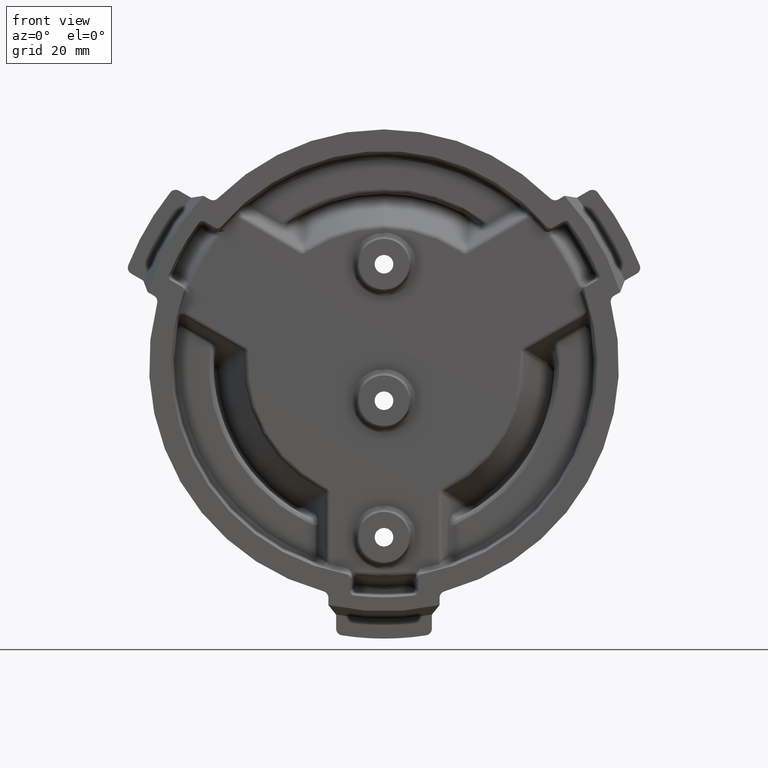
[diagram: clean part render]
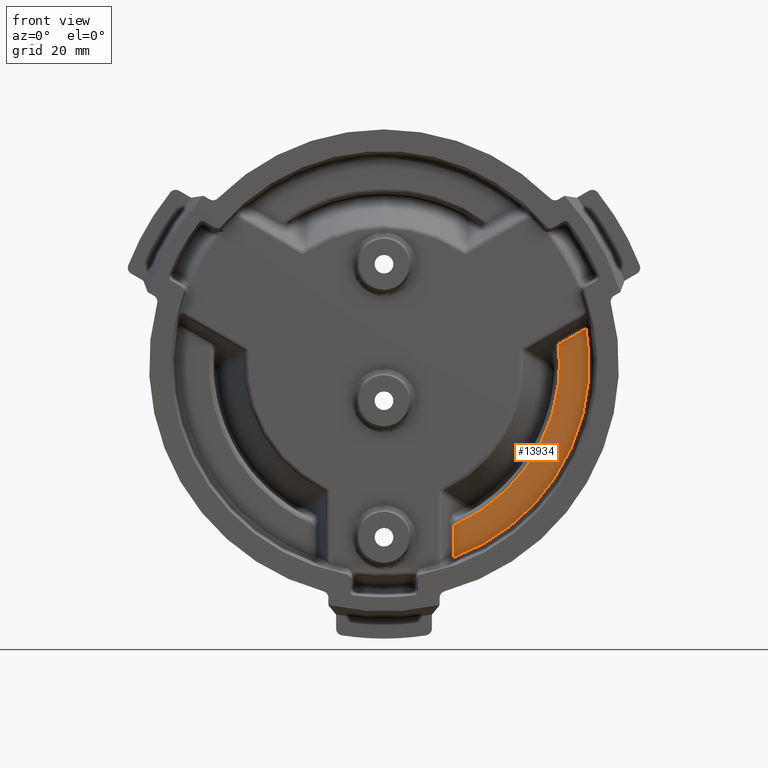
[diagram: same view with one face highlighted and labeled with its STEP entity id]
A machine part, front view. The second image highlights one B-rep face of the part: STEP entity #13934.
In plain terms, the highlighted planar face has unit normal (0, 1, 0).
Its self-contained STEP definition (entity closure, byte-faithful):
#318 = FACE_OUTER_BOUND ( 'NONE', #37169, .T. ) ;
#1163 = ORIENTED_EDGE ( 'NONE', *, *, #24831, .T. ) ;
#1164 = ORIENTED_EDGE ( 'NONE', *, *, #16904, .F. ) ;
#1168 = ORIENTED_EDGE ( 'NONE', *, *, #16879, .F. ) ;
#1172 = ORIENTED_EDGE ( 'NONE', *, *, #16853, .F. ) ;
#5905 = VERTEX_POINT ( 'NONE', #43051 ) ;
#7774 = CARTESIAN_POINT ( 'NONE',  ( 2.773791903206581600, 0.5000000000355761000, 0.4910372536394764800 ) ) ;
#12259 = VECTOR ( 'NONE', #13729, 39.37007874015748100 ) ;
#12278 = LINE ( 'NONE', #13727, #12259 ) ;
#12298 = LINE ( 'NONE', #13571, #12301 ) ;
#12301 = VECTOR ( 'NONE', #13573, 39.37007874015748100 ) ;
#13254 = CARTESIAN_POINT ( 'NONE',  ( 0.9616452163146697000, 0.5000000000888127300, -2.209317677332763600 ) ) ;
#13288 = CARTESIAN_POINT ( 'NONE',  ( 1.968843654033096900, 0.5000000002664380900, -1.770916460302042900 ) ) ;
#13289 = CARTESIAN_POINT ( 'NONE',  ( 2.518080469068788600, 0.5000000002664382000, -0.8196103903064720900 ) ) ;
#13291 = CARTESIAN_POINT ( 'NONE',  ( 2.394147841712717100, 0.5000000001112264700, 0.2718496525364943500 ) ) ;
#13571 = CARTESIAN_POINT ( 'NONE',  ( 2.394147841404617800, 0.5000000000537326800, 0.2718496537680262800 ) ) ;
#13573 = DIRECTION ( 'NONE',  ( 0.8660254037854993000, 1.892679805362464900E-015, 0.4999999999981628000 ) ) ;
#13727 = CARTESIAN_POINT ( 'NONE',  ( 0.9616452160000004100, 0.5000000000000001100, -1.078327813000000200 ) ) ;
#13729 = DIRECTION ( 'NONE',  ( 0.0000000000000000000, 0.0000000000000000000, 1.000000000000000000 ) ) ;
#13934 = ADVANCED_FACE ( 'NONE', ( #318 ), #31499, .F. ) ;
#16853 = EDGE_CURVE ( 'NONE', #37128, #37140, #36890, .T. ) ;
#16879 = EDGE_CURVE ( 'NONE', #37140, #41794, #12298, .T. ) ;
#16904 = EDGE_CURVE ( 'NONE', #5905, #37128, #12278, .T. ) ;
#21611 = CARTESIAN_POINT ( 'NONE',  ( 0.9616452159694232100, 0.4999999997718195300, -2.647692880291662400 ) ) ;
#21615 = CARTESIAN_POINT ( 'NONE',  ( 0.9976607790087793600, 0.5000000000000001100, -2.634611381217864400 ) ) ;
#21616 = CARTESIAN_POINT ( 'NONE',  ( 1.051237382430356200, 0.5000000000000001100, -2.613906424099919700 ) ) ;
#21617 = CARTESIAN_POINT ( 'NONE',  ( 1.112961622297733200, 0.5000000000000001100, -2.587855901127850400 ) ) ;
#21618 = CARTESIAN_POINT ( 'NONE',  ( 1.143628292866973700, 0.5000000000000002200, -2.574356954724867000 ) ) ;
#21619 = CARTESIAN_POINT ( 'NONE',  ( 1.158912765810481200, 0.5000000000000000000, -2.567489060294136900 ) ) ;
#21620 = CARTESIAN_POINT ( 'NONE',  ( 1.165452783713174500, 0.4999999999999999400, -2.564520300988987400 ) ) ;
#21621 = CARTESIAN_POINT ( 'NONE',  ( 1.169810468870155800, 0.5000000000000001100, -2.562535489012734300 ) ) ;
#21622 = CARTESIAN_POINT ( 'NONE',  ( 1.171930202892464500, 0.5000000000000001100, -2.561566834328383700 ) ) ;
#21623 = CARTESIAN_POINT ( 'NONE',  ( 1.209916039339113100, 0.5000000000000001100, -2.544148363159107500 ) ) ;
#21624 = CARTESIAN_POINT ( 'NONE',  ( 1.262986441001530300, 0.4999999999999999400, -2.518455190682919600 ) ) ;
#21625 = CARTESIAN_POINT ( 'NONE',  ( 1.323927751884016200, 0.4999999999999997800, -2.486550640908331100 ) ) ;
#21626 = CARTESIAN_POINT ( 'NONE',  ( 1.354154867894343100, 0.5000000000000001100, -2.470116070549613200 ) ) ;
#21627 = CARTESIAN_POINT ( 'NONE',  ( 1.369207541041777200, 0.5000000000000001100, -2.461778211502395400 ) ) ;
#21628 = CARTESIAN_POINT ( 'NONE',  ( 1.375645639921164500, 0.5000000000000000000, -2.458179006081904600 ) ) ;
#21629 = CARTESIAN_POINT ( 'NONE',  ( 1.379934806561816200, 0.5000000000000001100, -2.455773794188823800 ) ) ;
#21630 = CARTESIAN_POINT ( 'NONE',  ( 1.382028509387969600, 0.5000000000000001100, -2.454596206541617600 ) ) ;
#21631 = CARTESIAN_POINT ( 'NONE',  ( 1.419277462621487200, 0.5000000000000000000, -2.433580183236461600 ) ) ;
#21632 = CARTESIAN_POINT ( 'NONE',  ( 1.471185282565719000, 0.5000000000000001100, -2.402809562334954600 ) ) ;
#21633 = CARTESIAN_POINT ( 'NONE',  ( 1.530556265100644400, 0.5000000000000002200, -2.364983857969270800 ) ) ;
#21634 = CARTESIAN_POINT ( 'NONE',  ( 1.559944721184770800, 0.5000000000000001100, -2.345589344124615000 ) ) ;
#21635 = CARTESIAN_POINT ( 'NONE',  ( 1.574564690431000200, 0.5000000000000001100, -2.335771671786834400 ) ) ;
#21636 = CARTESIAN_POINT ( 'NONE',  ( 1.580814478937419700, 0.5000000000000001100, -2.331538294624473400 ) ) ;
#21637 = CARTESIAN_POINT ( 'NONE',  ( 1.584977468475231600, 0.5000000000000002200, -2.328710309115497300 ) ) ;
#21638 = CARTESIAN_POINT ( 'NONE',  ( 1.587016523886910300, 0.5000000000000001100, -2.327321237234744700 ) ) ;
#21639 = CARTESIAN_POINT ( 'NONE',  ( 1.623033232636206700, 0.5000000000000000000, -2.302713486836174300 ) ) ;
#21640 = CARTESIAN_POINT ( 'NONE',  ( 1.673077691282274500, 0.5000000000000002200, -2.266893341507954000 ) ) ;
#21641 = CARTESIAN_POINT ( 'NONE',  ( 1.730058238756614800, 0.5000000000000000000, -2.223213536265737000 ) ) ;
#21642 = CARTESIAN_POINT ( 'NONE',  ( 1.758197348923935100, 0.5000000000000000000, -2.200901224721471600 ) ) ;
#21643 = CARTESIAN_POINT ( 'NONE',  ( 1.770181718230674500, 0.5000000000000000000, -2.191237575004681700 ) ) ;
#21644 = CARTESIAN_POINT ( 'NONE',  ( 1.778154575693746900, 0.5000000000000003300, -2.184772646197148800 ) ) ;
#21645 = CARTESIAN_POINT ( 'NONE',  ( 1.782069728928509500, 0.5000000000000002200, -2.181580520658493500 ) ) ;
#21646 = CARTESIAN_POINT ( 'NONE',  ( 1.818363318974105700, 0.5000000000000001100, -2.151821599787980200 ) ) ;
#21647 = CARTESIAN_POINT ( 'NONE',  ( 1.865830969738344600, 0.5000000000000001100, -2.111105349623038300 ) ) ;
#21648 = CARTESIAN_POINT ( 'NONE',  ( 1.919593241027651300, 0.4999999999999999400, -2.061787102006490200 ) ) ;
#21649 = CARTESIAN_POINT ( 'NONE',  ( 1.946070213021727600, 0.5000000000000001100, -2.036673989258854300 ) ) ;
#21650 = CARTESIAN_POINT ( 'NONE',  ( 1.957330880236922500, 0.5000000000000001100, -2.025813943308575600 ) ) ;
#21651 = CARTESIAN_POINT ( 'NONE',  ( 1.964818745825597000, 0.5000000000000001100, -2.018552294154133200 ) ) ;
#21652 = CARTESIAN_POINT ( 'NONE',  ( 1.968508540358004700, 0.5000000000000001100, -2.014954312217832800 ) ) ;
#21653 = CARTESIAN_POINT ( 'NONE',  ( 2.002431360374739900, 0.5000000000000001100, -1.981689457222116200 ) ) ;
#21654 = CARTESIAN_POINT ( 'NONE',  ( 2.046623991619345600, 0.5000000000000001100, -1.936361757361554100 ) ) ;
#21655 = CARTESIAN_POINT ( 'NONE',  ( 2.096365919377062500, 0.5000000000000001100, -1.881773961091586000 ) ) ;
#21656 = CARTESIAN_POINT ( 'NONE',  ( 2.117294715124444800, 0.5000000000000001100, -1.858013731311748600 ) ) ;
#21657 = CARTESIAN_POINT ( 'NONE',  ( 2.131160762669001700, 0.5000000000000002200, -1.842092364803000500 ) ) ;
#21658 = CARTESIAN_POINT ( 'NONE',  ( 2.137996300303107100, 0.5000000000000002200, -1.834154790268445400 ) ) ;
#21659 = CARTESIAN_POINT ( 'NONE',  ( 2.172500227702627700, 0.5000000000000001100, -1.793626730481058000 ) ) ;
#21660 = CARTESIAN_POINT ( 'NONE',  ( 2.212764890679459000, 0.5000000000000002200, -1.744101528314576400 ) ) ;
#21661 = CARTESIAN_POINT ( 'NONE',  ( 2.251319478802397800, 0.5000000000000001100, -1.693239030515672400 ) ) ;
#21662 = CARTESIAN_POINT ( 'NONE',  ( 2.276642520916825100, 0.5000000000000001100, -1.659033521842530900 ) ) ;
#21663 = CARTESIAN_POINT ( 'NONE',  ( 2.289067146013835400, 0.5000000000000000000, -1.641848607589732100 ) ) ;
#21664 = CARTESIAN_POINT ( 'NONE',  ( 2.350709106344433000, 0.5000000000000000000, -1.554516809433980300 ) ) ;
#21665 = CARTESIAN_POINT ( 'NONE',  ( 2.396765828728718400, 0.5000000000000001100, -1.482518908016411200 ) ) ;
#21666 = CARTESIAN_POINT ( 'NONE',  ( 2.460903696092089400, 0.5000000000000001100, -1.371430655850699500 ) ) ;
#21667 = CARTESIAN_POINT ( 'NONE',  ( 2.491679369696148800, 0.5000000000000002200, -1.315210568207135100 ) ) ;
#21668 = CARTESIAN_POINT ( 'NONE',  ( 2.525321117098370500, 0.5000000000000002200, -1.248437533225069700 ) ) ;
#21669 = CARTESIAN_POINT ( 'NONE',  ( 2.539254036313069100, 0.5000000000000001100, -1.219567032647490600 ) ) ;
#21670 = CARTESIAN_POINT ( 'NONE',  ( 2.548434877449733600, 0.5000000000000001100, -1.200263702132379200 ) ) ;
#21671 = CARTESIAN_POINT ( 'NONE',  ( 2.552991402773812100, 0.5000000000000001100, -1.190540578528850300 ) ) ;
#21672 = CARTESIAN_POINT ( 'NONE',  ( 2.575304694288218500, 0.5000000000000001100, -1.142217067995491900 ) ) ;
#21673 = CARTESIAN_POINT ( 'NONE',  ( 2.600742601527828800, 0.5000000000000002200, -1.083677324109737500 ) ) ;
#21674 = CARTESIAN_POINT ( 'NONE',  ( 2.628078585463104100, 0.5000000000000000000, -1.014415776563005100 ) ) ;
#21675 = CARTESIAN_POINT ( 'NONE',  ( 2.641161183803008200, 0.5000000000000002200, -0.9795437078696355200 ) ) ;
#21676 = CARTESIAN_POINT ( 'NONE',  ( 2.646642570171308800, 0.5000000000000001100, -0.9645468295181902600 ) ) ;
#21677 = CARTESIAN_POINT ( 'NONE',  ( 2.650268951863142200, 0.5000000000000001100, -0.9545374203829406500 ) ) ;
#21678 = CARTESIAN_POINT ( 'NONE',  ( 2.652083432714050600, 0.5000000000000001100, -0.9494841847708053200 ) ) ;
#21679 = CARTESIAN_POINT ( 'NONE',  ( 2.668014215807392700, 0.5000000000000001100, -0.9047235048999210400 ) ) ;
#21680 = CARTESIAN_POINT ( 'NONE',  ( 2.687895495509090800, 0.5000000000000003300, -0.8446208946697588700 ) ) ;
#21681 = CARTESIAN_POINT ( 'NONE',  ( 2.708710734087905500, 0.5000000000000001100, -0.7737632011971815600 ) ) ;
#21682 = CARTESIAN_POINT ( 'NONE',  ( 2.718523456442355300, 0.5000000000000001100, -0.7381498590765472900 ) ) ;
#21683 = CARTESIAN_POINT ( 'NONE',  ( 2.722601430965343000, 0.5000000000000002200, -0.7228474634424865200 ) ) ;
#21684 = CARTESIAN_POINT ( 'NONE',  ( 2.725291752221859400, 0.5000000000000000000, -0.7126370808586199900 ) ) ;
#21685 = CARTESIAN_POINT ( 'NONE',  ( 2.726639178148980900, 0.5000000000000001100, -0.7074636920759437300 ) ) ;
#21686 = CARTESIAN_POINT ( 'NONE',  ( 2.738342802369656300, 0.5000000000000001100, -0.6620121436895801700 ) ) ;
#21687 = CARTESIAN_POINT ( 'NONE',  ( 2.752589242499512900, 0.5000000000000001100, -0.6011185492003619000 ) ) ;
#21688 = CARTESIAN_POINT ( 'NONE',  ( 2.766832903030017800, 0.5000000000000001100, -0.5295658448416586900 ) ) ;
#21689 = CARTESIAN_POINT ( 'NONE',  ( 2.773360436723355100, 0.5000000000000001100, -0.4936619482986532300 ) ) ;
#21690 = CARTESIAN_POINT ( 'NONE',  ( 2.776030601897947500, 0.5000000000000001100, -0.4782472331308679800 ) ) ;
#21691 = CARTESIAN_POINT ( 'NONE',  ( 2.777782412177584300, 0.5000000000000002200, -0.4679646828112182200 ) ) ;
#21692 = CARTESIAN_POINT ( 'NONE',  ( 2.778657953799531700, 0.5000000000000001100, -0.4627366486453855000 ) ) ;
#21693 = CARTESIAN_POINT ( 'NONE',  ( 2.786162323922500000, 0.5000000000000001100, -0.4171640104558264100 ) ) ;
#21694 = CARTESIAN_POINT ( 'NONE',  ( 2.794832929062012600, 0.5000000000000001100, -0.3562349429158268000 ) ) ;
#21695 = CARTESIAN_POINT ( 'NONE',  ( 2.802611997098665200, 0.5000000000000000000, -0.2848613183664648900 ) ) ;
#21696 = CARTESIAN_POINT ( 'NONE',  ( 2.805917371627131300, 0.4999999999999999400, -0.2491020779869443100 ) ) ;
#21697 = CARTESIAN_POINT ( 'NONE',  ( 2.807424019018901300, 0.5000000000000003300, -0.2312043507709733200 ) ) ;
#21698 = CARTESIAN_POINT ( 'NONE',  ( 2.808038430785559900, 0.5000000000000002200, -0.2235300161727982500 ) ) ;
#21699 = CARTESIAN_POINT ( 'NONE',  ( 2.808441084350355800, 0.5000000000000000000, -0.2184129308680046700 ) ) ;
#21700 = CARTESIAN_POINT ( 'NONE',  ( 2.808642793904869700, 0.5000000000000001100, -0.2158031316069943800 ) ) ;
#21701 = CARTESIAN_POINT ( 'NONE',  ( 2.811881507948842200, 0.5000000000000002200, -0.1731572817594220500 ) ) ;
#21702 = CARTESIAN_POINT ( 'NONE',  ( 2.815161229553301500, 0.5000000000000002200, -0.1129036816866717100 ) ) ;
#21703 = CARTESIAN_POINT ( 'NONE',  ( 2.816725555418452900, 0.5000000000000000000, -0.04252434972534792400 ) ) ;
#21704 = CARTESIAN_POINT ( 'NONE',  ( 2.816942214349350300, 0.5000000000000001100, -0.007313817442240915100 ) ) ;
#21705 = CARTESIAN_POINT ( 'NONE',  ( 2.816909167814377800, 0.5000000000000001100, 0.01029666527492438000 ) ) ;
#21706 = CARTESIAN_POINT ( 'NONE',  ( 2.816864710156443700, 0.5000000000000000000, 0.01784513284848270000 ) ) ;
#21707 = CARTESIAN_POINT ( 'NONE',  ( 2.816828339527321900, 0.4999999999999999400, 0.02287769297255097900 ) ) ;
#21708 = CARTESIAN_POINT ( 'NONE',  ( 2.816806209193836600, 0.5000000000000000000, 0.02545256528834358200 ) ) ;
#21709 = CARTESIAN_POINT ( 'NONE',  ( 2.816392453310431400, 0.4999999999999999400, 0.06723959244227641100 ) ) ;
#21710 = CARTESIAN_POINT ( 'NONE',  ( 2.814574774065552500, 0.5000000000000002200, 0.1261743245167090700 ) ) ;
#21711 = CARTESIAN_POINT ( 'NONE',  ( 2.810295430019141600, 0.5000000000000001100, 0.1948287553927174900 ) ) ;
#21712 = CARTESIAN_POINT ( 'NONE',  ( 2.807616078430756900, 0.5000000000000001100, 0.2291302816946801900 ) ) ;
#21713 = CARTESIAN_POINT ( 'NONE',  ( 2.806141482745270200, 0.5000000000000001100, 0.2462746225616511700 ) ) ;
#21714 = CARTESIAN_POINT ( 'NONE',  ( 2.805480601760498500, 0.5000000000000000000, 0.2536208210152089400 ) ) ;
#21715 = CARTESIAN_POINT ( 'NONE',  ( 2.805033589680588200, 0.5000000000000000000, 0.2585179808278653100 ) ) ;
#21716 = CARTESIAN_POINT ( 'NONE',  ( 2.804800787965485900, 0.5000000000000001100, 0.2610311819985137700 ) ) ;
#21717 = CARTESIAN_POINT ( 'NONE',  ( 2.797413820468805000, 0.5000000000000001100, 0.3396866789438881000 ) ) ;
#21718 = CARTESIAN_POINT ( 'NONE',  ( 2.787152141550980600, 0.4999999999999999400, 0.4155608695604075500 ) ) ;
#21719 = CARTESIAN_POINT ( 'NONE',  ( 2.773791903206581600, 0.5000000000355761000, 0.4910372536394764800 ) ) ;
#24831 = EDGE_CURVE ( 'NONE', #5905, #41794, #29779, .T. ) ;
#29779 = B_SPLINE_CURVE_WITH_KNOTS ( 'NONE', 3,
 ( #21611, #21615, #21616, #21617, #21618, #21619, #21620, #21621, #21622, #21623, #21624, #21625, #21626, #21627, #21628, #21629, #21630, #21631, #21632, #21633, #21634, #21635, #21636, #21637, #21638, #21639, #21640, #21641, #21642, #21643, #21644, #21645, #21646, #21647, #21648, #21649, #21650, #21651, #21652, #21653, #21654, #21655, #21656, #21657, #21658, #21659, #21660, #21661, #21662, #21663, #21664, #21665, #21666, #21667, #21668, #21669, #21670, #21671, #21672, #21673, #21674, #21675, #21676, #21677, #21678, #21679, #21680, #21681, #21682, #21683, #21684, #21685, #21686, #21687, #21688, #21689, #21690, #21691, #21692, #21693, #21694, #21695, #21696, #21697, #21698, #21699, #21700, #21701, #21702, #21703, #21704, #21705, #21706, #21707, #21708, #21709, #21710, #21711, #21712, #21713, #21714, #21715, #21716, #21717, #21718, #21719 ),
 .UNSPECIFIED., .F., .F.,
 ( 4, 1, 1, 1, 1, 2, 2, 1, 1, 1, 1, 2, 2, 1, 1, 1, 1, 2, 2, 1, 1, 1, 2, 2, 1, 1, 1, 2, 2, 1, 1, 2, 2, 1, 2, 2, 2, 1, 1, 2, 2, 1, 1, 1, 2, 2, 1, 1, 1, 2, 2, 1, 1, 1, 2, 2, 1, 1, 1, 1, 2, 2, 1, 1, 1, 1, 2, 2, 1, 1, 1, 1, 2, 2, 4 ),
 ( 0.0000000000000000000, 0.03125000000000321300, 0.04687500000000467700, 0.05468750000000532200, 0.05859375000000573800, 0.06054687500000599500, 0.06250000000000624500, 0.09375000000000874300, 0.1093750000000099900, 0.1171875000000106200, 0.1210937500000108400, 0.1230468750000109100, 0.1250000000000109600, 0.1562500000000127400, 0.1718750000000137100, 0.1796875000000142700, 0.1835937500000144900, 0.1855468750000145700, 0.1875000000000146500, 0.2187500000000152100, 0.2343750000000154900, 0.2421875000000154900, 0.2460937500000155700, 0.2500000000000156000, 0.2812500000000154900, 0.2968750000000154900, 0.3046875000000154300, 0.3085937500000154900, 0.3125000000000154900, 0.3437500000000148800, 0.3593750000000145400, 0.3671875000000142700, 0.3750000000000139900, 0.4062500000000136000, 0.4218750000000134900, 0.4375000000000133800, 0.5000000000000131000, 0.5312500000000127700, 0.5468750000000125500, 0.5546875000000125500, 0.5625000000000124300, 0.5937500000000118800, 0.6093750000000115500, 0.6171875000000114400, 0.6210937500000113200, 0.6250000000000113200, 0.6562500000000106600, 0.6718750000000103300, 0.6796875000000101000, 0.6835937500000099900, 0.6875000000000098800, 0.7187500000000085500, 0.7343750000000078800, 0.7421875000000075500, 0.7460937500000074400, 0.7500000000000072200, 0.7812500000000064400, 0.7968750000000061100, 0.8046875000000058800, 0.8085937500000057700, 0.8105468750000057700, 0.8125000000000056600, 0.8437500000000045500, 0.8593750000000040000, 0.8671875000000036600, 0.8710937500000035500, 0.8730468750000034400, 0.8750000000000034400, 0.9062500000000022200, 0.9218750000000016700, 0.9296875000000013300, 0.9335937500000012200, 0.9355468750000011100, 0.9375000000000011100, 1.000000000000000000 ),
 .UNSPECIFIED. ) ;
#30208 = AXIS2_PLACEMENT_3D ( 'NONE', #31500, #31517, #31518 ) ;
#31499 = PLANE ( 'NONE',  #30208 ) ;
#31500 = CARTESIAN_POINT ( 'NONE',  ( 0.9616452160000004100, 0.5000000000000001100, -2.666525261000000800 ) ) ;
#31517 = DIRECTION ( 'NONE',  ( 0.0000000000000000000, 1.000000000000000000, 0.0000000000000000000 ) ) ;
#31518 = DIRECTION ( 'NONE',  ( 0.0000000000000000000, 0.0000000000000000000, 1.000000000000000000 ) ) ;
#36890 =( BOUNDED_CURVE ( )  B_SPLINE_CURVE ( 3, ( #13254, #13288, #13289, #13291 ),
 .UNSPECIFIED., .F., .T. ) 
 B_SPLINE_CURVE_WITH_KNOTS ( ( 4, 4 ),
 ( 0.0000000000000000000, 1.000000000000000000 ),
 .UNSPECIFIED. ) 
 CURVE ( )  GEOMETRIC_REPRESENTATION_ITEM ( )  RATIONAL_B_SPLINE_CURVE ( ( 0.9546552194222365200, 0.8299674925993005800, 0.8299674925993004700, 0.9546552194222367400 ) ) 
 REPRESENTATION_ITEM ( '' )  );
#37128 = VERTEX_POINT ( 'NONE', #41063 ) ;
#37140 = VERTEX_POINT ( 'NONE', #41080 ) ;
#37169 = EDGE_LOOP ( 'NONE', ( #1163, #1168, #1172, #1164 ) ) ;
#41063 = CARTESIAN_POINT ( 'NONE',  ( 0.9616452163146697000, 0.5000000000888127300, -2.209317677332763600 ) ) ;
#41080 = CARTESIAN_POINT ( 'NONE',  ( 2.394147841712717100, 0.5000000001112264700, 0.2718496525364943500 ) ) ;
#41794 = VERTEX_POINT ( 'NONE', #7774 ) ;
#43051 = CARTESIAN_POINT ( 'NONE',  ( 0.9616452159694232100, 0.4999999997718195300, -2.647692880291662400 ) ) ;